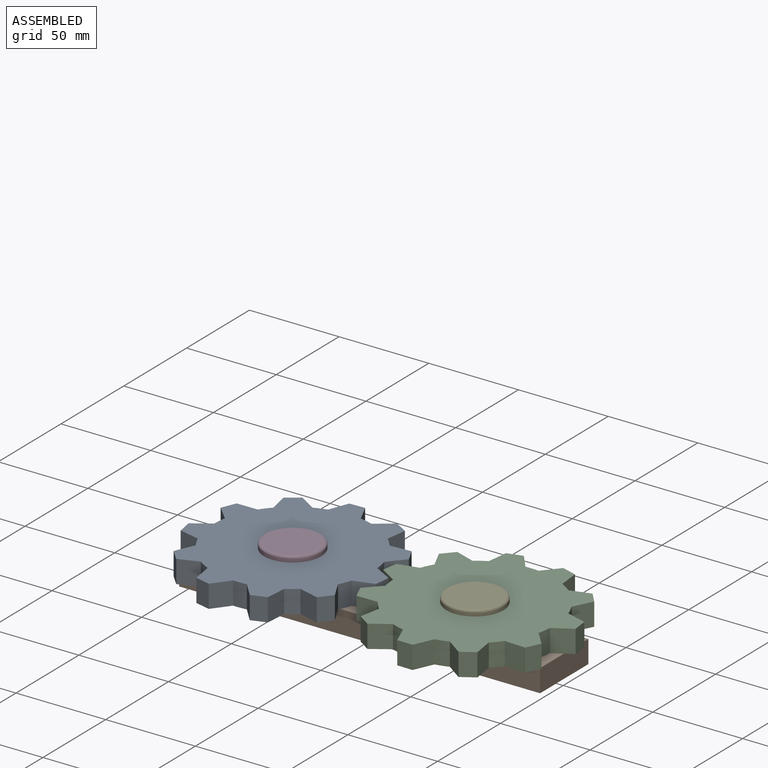
[diagram: assembled view]
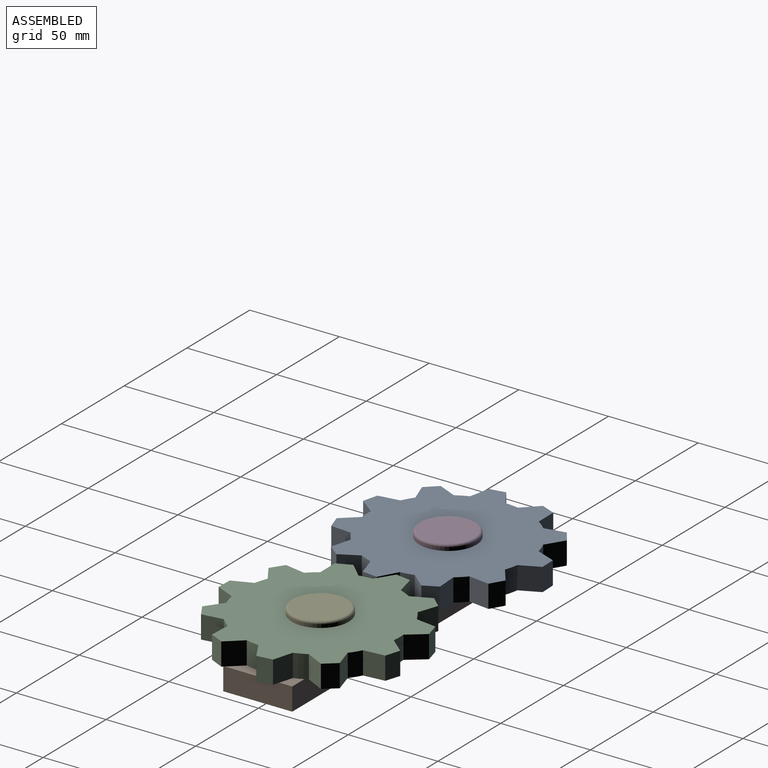
[diagram: assembled view, second angle]
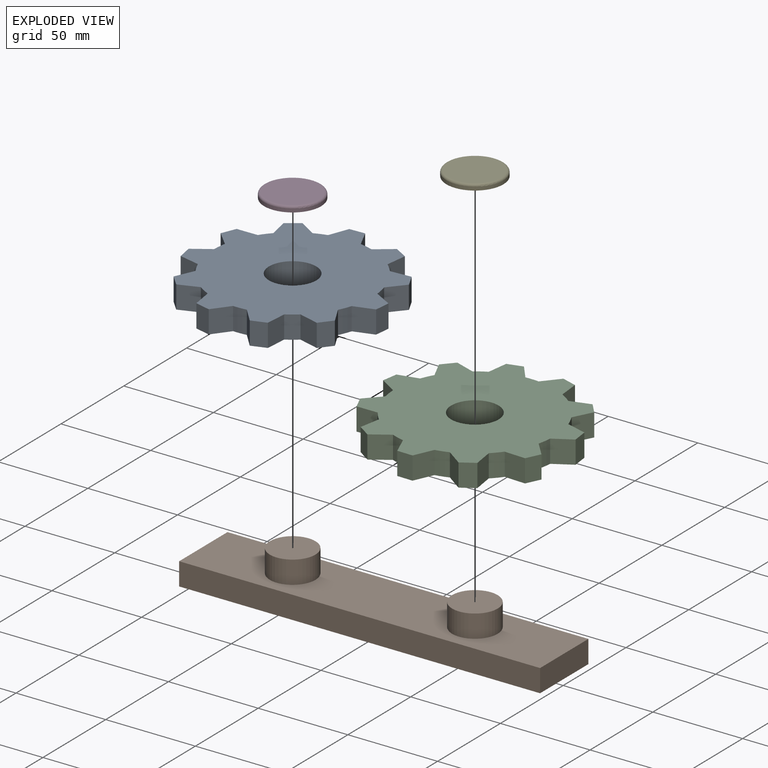
[diagram: exploded view]
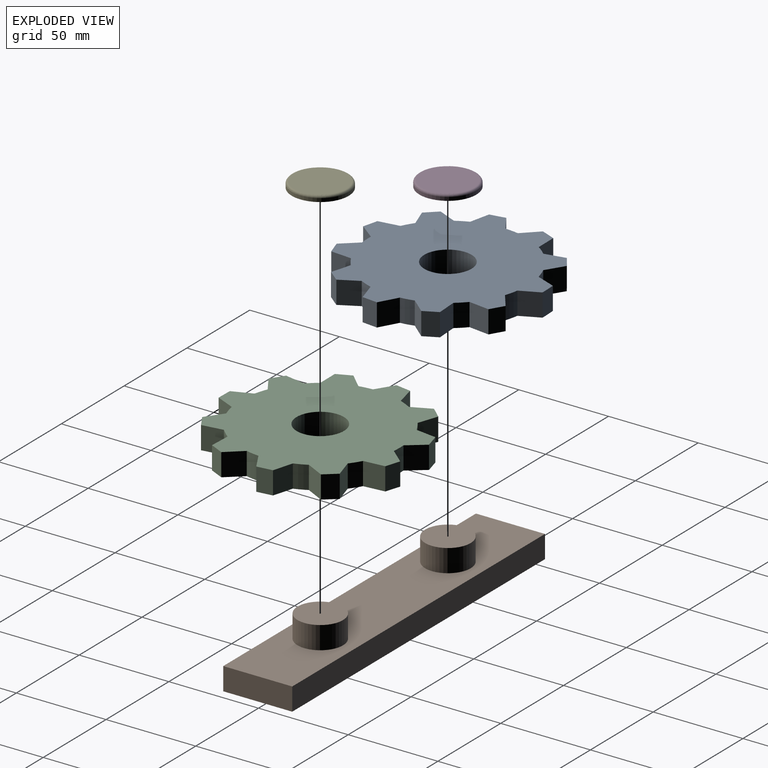
[diagram: exploded view, second angle]
ASSEMBLY  parts=5 mates=4
PART A: 47 faces, bbox 107.6x108.7x12.7 mm
  f0: plane 12.7x9.03mm, normal (-0.63,-0.77,0), area 148.4mm2, adj f1,f43,f45,f46
  f1: cylinder r=44.45mm len=12.7mm, axis (0,0,-1), area 95.1mm2, adj f0,f2,f45,f46
  f2: plane 12.7x9.03mm, normal (-0.63,0.77,0), area 148.4mm2, adj f1,f3,f45,f46
  f3: plane 12.7x8.29mm, normal (-0.96,-0.28,0), area 109.7mm2, adj f2,f4,f45,f46
  f4: plane 12.7x11.61mm, normal (-0.12,-0.99,0), area 148.4mm2, adj f3,f5,f45,f46
  f5: cylinder r=44.45mm len=12.7mm, axis (0,0,-1), area 95.1mm2, adj f4,f6,f45,f46
  f6: plane 12.7x11.12mm, normal (-0.95,0.31,0), area 148.4mm2, adj f5,f7,f45,f46
  f7: plane 12.7x6.53mm, normal (-0.65,-0.76,0), area 109.7mm2, adj f6,f8,f45,f46
  f8: plane 12.7x10.5mm, normal (0.44,-0.9,0), area 148.4mm2, adj f7,f9,f45,f46
  f9: cylinder r=44.45mm len=12.7mm, axis (0,0,-1), area 95.1mm2, adj f8,f10,f45,f46
  f10: plane 12.7x11.29mm, normal (-0.97,-0.26,0), area 148.4mm2, adj f9,f11,f45,f46
  f11: plane 12.7x8.55mm, normal (-0.14,-0.99,0), area 109.7mm2, adj f10,f12,f45,f46
  f12: plane 12.7x9.99mm, normal (0.86,-0.52,0), area 148.4mm2, adj f11,f13,f45,f46
  f13: cylinder r=44.45mm len=12.7mm, axis (0,0,-1), area 95.1mm2, adj f12,f14,f45,f46
  f14: plane 12.7x8.63mm, normal (-0.67,-0.74,0), area 148.4mm2, adj f13,f15,f45,f46
  f15: plane 12.7x7.86mm, normal (0.42,-0.91,0), area 109.7mm2, adj f14,f16,f45,f46
  f16: plane 12.7x11.68mm, normal (1,0.03,0), area 148.4mm2, adj f15,f17,f45,f46
  f17: cylinder r=44.45mm len=12.7mm, axis (0,0,-1), area 95.1mm2, adj f16,f18,f45,f46
  f18: plane 12.7x11.52mm, normal (-0.17,-0.99,0), area 148.4mm2, adj f17,f19,f45,f46
  f19: plane 12.7x7.27mm, normal (0.84,-0.54,0), area 109.7mm2, adj f18,f20,f45,f46
  f20: plane 12.7x9.66mm, normal (0.83,0.56,0), area 148.4mm2, adj f19,f21,f45,f46
  f21: cylinder r=44.45mm len=12.7mm, axis (0,0,-1), area 95.1mm2, adj f20,f22,f45,f46
  f22: plane 12.7x10.75mm, normal (0.39,-0.92,0), area 148.4mm2, adj f21,f23,f45,f46
  f23: plane 12.7x8.64mm, normal (1,0,0), area 109.7mm2, adj f22,f24,f45,f46
  f24: plane 12.7x10.75mm, normal (0.39,0.92,0), area 148.4mm2, adj f23,f25,f45,f46
  f25: cylinder r=44.45mm len=12.7mm, axis (0,0,-1), area 95.1mm2, adj f24,f26,f45,f46
  f26: plane 12.7x9.66mm, normal (0.83,-0.56,0), area 148.4mm2, adj f25,f27,f45,f46
  f27: plane 12.7x7.27mm, normal (0.84,0.54,0), area 109.7mm2, adj f26,f28,f45,f46
  f28: plane 12.7x11.52mm, normal (-0.17,0.99,0), area 148.4mm2, adj f27,f29,f45,f46
  f29: cylinder r=44.45mm len=12.7mm, axis (0,0,-1), area 95.1mm2, adj f28,f30,f45,f46
  f30: plane 12.7x11.68mm, normal (1,-0.03,0), area 148.4mm2, adj f29,f31,f45,f46
  f31: plane 12.7x7.86mm, normal (0.42,0.91,0), area 109.7mm2, adj f30,f32,f45,f46
  f32: plane 12.7x8.63mm, normal (-0.67,0.74,0), area 148.4mm2, adj f31,f33,f45,f46
  f33: cylinder r=44.45mm len=12.7mm, axis (0,0,-1), area 95.1mm2, adj f32,f34,f45,f46
  f34: plane 12.7x9.99mm, normal (0.86,0.52,0), area 148.4mm2, adj f33,f35,f45,f46
  f35: plane 12.7x8.55mm, normal (-0.14,0.99,0), area 109.7mm2, adj f34,f36,f45,f46
  f36: plane 12.7x11.29mm, normal (-0.97,0.26,0), area 148.4mm2, adj f35,f37,f45,f46
  f37: cylinder r=44.45mm len=12.7mm, axis (0,0,-1), area 95.1mm2, adj f36,f38,f45,f46
  f38: plane 12.7x10.5mm, normal (0.44,0.9,0), area 148.4mm2, adj f37,f39,f45,f46
  f39: plane 12.7x6.53mm, normal (-0.65,0.76,0), area 109.7mm2, adj f38,f40,f45,f46
  f40: plane 12.7x11.12mm, normal (-0.95,-0.31,0), area 148.4mm2, adj f39,f41,f45,f46
  f41: cylinder r=44.45mm len=12.7mm, axis (0,0,-1), area 95.1mm2, adj f40,f42,f45,f46
  f42: plane 12.7x11.61mm, normal (-0.12,0.99,0), area 148.4mm2, adj f41,f43,f45,f46
  f43: plane 12.7x8.29mm, normal (-0.96,0.28,0), area 109.7mm2, adj f0,f42,f45,f46
  f44: cylinder r=13.21mm len=26.42mm, axis (0,0,-1), area 1054mm2, adj f45,f46
  f45: plane 108.73x107.63mm, normal (0,0,1), area 7104mm2, adj f0,f1,f2,f3,f4,f5,f6,f7
  f46: plane 108.73x107.63mm, normal (0,0,-1), area 7104mm2, adj f0,f1,f2,f3,f4,f5,f6,f7
PART B: 10 faces, bbox 201.2x38.5x25.4 mm
  f0: plane 38.46x12.7mm, normal (-1,0,0), area 488.4mm2, adj f1,f3,f4,f5
  f1: plane 201.2x12.7mm, normal (0,-1,0), area 2555.2mm2, adj f0,f2,f4,f5
  f2: plane 38.46x12.7mm, normal (1,0,0), area 488.4mm2, adj f1,f3,f4,f5
  f3: plane 201.2x12.7mm, normal (0,1,0), area 2555.2mm2, adj f0,f2,f4,f5
  f4: plane 201.2x38.46mm, normal (0,0,1), area 6724.4mm2, adj f0,f1,f2,f3,f6,f8
  f5: plane 201.2x38.46mm, normal (0,0,-1), area 7737.8mm2, adj f0,f1,f2,f3
  f6: cylinder r=12.7mm len=25.4mm, axis (0,0,-1), area 1013.4mm2, adj f4,f7
  f7: plane 25.4x25.4mm, normal (0,0,1), area 506.7mm2, adj f6
  f8: cylinder r=12.7mm len=25.4mm, axis (0,0,-1), area 1013.4mm2, adj f4,f9
  f9: plane 25.4x25.4mm, normal (0,0,1), area 506.7mm2, adj f8
PART C: 47 faces, bbox 107.9x108.7x12.7 mm
  f0: plane 12.7x8.48mm, normal (-0.69,0.73,0), area 148.4mm2, adj f1,f43,f45,f46
  f1: cylinder r=44.45mm len=12.7mm, axis (0,0,-1), area 95.1mm2, adj f0,f2,f45,f46
  f2: plane 12.7x9.88mm, normal (0.85,0.53,0), area 148.4mm2, adj f1,f3,f45,f46
  f3: plane 12.7x8.53mm, normal (-0.16,0.99,0), area 109.7mm2, adj f2,f4,f45,f46
  f4: plane 12.7x11.35mm, normal (-0.97,0.24,0), area 148.4mm2, adj f3,f5,f45,f46
  f5: cylinder r=44.45mm len=12.7mm, axis (0,0,-1), area 95.1mm2, adj f4,f6,f45,f46
  f6: plane 12.7x10.59mm, normal (0.42,0.91,0), area 148.4mm2, adj f5,f7,f45,f46
  f7: plane 12.7x6.43mm, normal (-0.67,0.74,0), area 109.7mm2, adj f6,f8,f45,f46
  f8: plane 12.7x11.05mm, normal (-0.95,-0.32,0), area 148.4mm2, adj f7,f9,f45,f46
  f9: cylinder r=44.45mm len=12.7mm, axis (0,0,-1), area 95.1mm2, adj f8,f10,f45,f46
  f10: plane 12.7x11.58mm, normal (-0.13,0.99,0), area 148.4mm2, adj f9,f11,f45,f46
  f11: plane 12.7x8.33mm, normal (-0.96,0.26,0), area 109.7mm2, adj f10,f12,f45,f46
  f12: plane 12.7x9.16mm, normal (-0.62,-0.78,0), area 148.4mm2, adj f11,f13,f45,f46
  f13: cylinder r=44.45mm len=12.7mm, axis (0,0,-1), area 95.1mm2, adj f12,f14,f45,f46
  f14: plane 12.7x8.9mm, normal (-0.65,0.76,0), area 148.4mm2, adj f13,f15,f45,f46
  f15: plane 12.7x8.24mm, normal (-0.95,-0.3,0), area 109.7mm2, adj f14,f16,f45,f46
  f16: plane 12.7x11.63mm, normal (-0.1,-1,0), area 148.4mm2, adj f15,f17,f45,f46
  f17: cylinder r=44.45mm len=12.7mm, axis (0,0,-1), area 95.1mm2, adj f16,f18,f45,f46
  f18: plane 12.7x11.18mm, normal (-0.96,0.29,0), area 148.4mm2, adj f17,f19,f45,f46
  f19: plane 12.7x6.63mm, normal (-0.64,-0.77,0), area 109.7mm2, adj f18,f20,f45,f46
  f20: plane 12.7x10.4mm, normal (0.46,-0.89,0), area 148.4mm2, adj f19,f21,f45,f46
  f21: cylinder r=44.45mm len=12.7mm, axis (0,0,-1), area 95.1mm2, adj f20,f22,f45,f46
  f22: plane 12.7x11.24mm, normal (-0.96,-0.27,0), area 148.4mm2, adj f21,f23,f45,f46
  f23: plane 12.7x8.57mm, normal (-0.12,-0.99,0), area 109.7mm2, adj f22,f24,f45,f46
  f24: plane 12.7x10.1mm, normal (0.86,-0.5,0), area 148.4mm2, adj f23,f25,f45,f46
  f25: cylinder r=44.45mm len=12.7mm, axis (0,0,-1), area 95.1mm2, adj f24,f26,f45,f46
  f26: plane 12.7x8.76mm, normal (-0.66,-0.75,0), area 148.4mm2, adj f25,f27,f45,f46
  f27: plane 12.7x7.79mm, normal (0.43,-0.9,0), area 109.7mm2, adj f26,f28,f45,f46
  f28: plane 12.7x11.67mm, normal (1,0.04,0), area 148.4mm2, adj f27,f29,f45,f46
  f29: cylinder r=44.45mm len=12.7mm, axis (0,0,-1), area 95.1mm2, adj f28,f30,f45,f46
  f30: plane 12.7x11.55mm, normal (-0.15,-0.99,0), area 148.4mm2, adj f29,f31,f45,f46
  f31: plane 12.7x7.35mm, normal (0.85,-0.53,0), area 109.7mm2, adj f30,f32,f45,f46
  f32: plane 12.7x9.54mm, normal (0.82,0.58,0), area 148.4mm2, adj f31,f33,f45,f46
  f33: cylinder r=44.45mm len=12.7mm, axis (0,0,-1), area 95.1mm2, adj f32,f34,f45,f46
  f34: plane 12.7x10.67mm, normal (0.41,-0.91,0), area 148.4mm2, adj f33,f35,f45,f46
  f35: plane 12.7x8.63mm, normal (1,0.02,0), area 109.7mm2, adj f34,f36,f45,f46
  f36: plane 12.7x10.83mm, normal (0.37,0.93,0), area 148.4mm2, adj f35,f37,f45,f46
  f37: cylinder r=44.45mm len=12.7mm, axis (0,0,-1), area 95.1mm2, adj f36,f38,f45,f46
  f38: plane 12.7x9.77mm, normal (0.84,-0.55,0), area 148.4mm2, adj f37,f39,f45,f46
  f39: plane 12.7x7.18mm, normal (0.83,0.56,0), area 109.7mm2, adj f38,f40,f45,f46
  f40: plane 12.7x11.48mm, normal (-0.19,0.98,0), area 148.4mm2, adj f39,f41,f45,f46
  f41: cylinder r=44.45mm len=12.7mm, axis (0,0,-1), area 95.1mm2, adj f40,f42,f45,f46
  f42: plane 12.7x11.68mm, normal (1,-0.01,0), area 148.4mm2, adj f41,f43,f45,f46
  f43: plane 12.7x7.92mm, normal (0.4,0.92,0), area 109.7mm2, adj f0,f42,f45,f46
  f44: cylinder r=13.21mm len=26.42mm, axis (0,0,-1), area 1054mm2, adj f45,f46
  f45: plane 108.72x107.88mm, normal (0,0,1), area 7104mm2, adj f0,f1,f2,f3,f4,f5,f6,f7
  f46: plane 108.72x107.88mm, normal (0,0,-1), area 7104mm2, adj f0,f1,f2,f3,f4,f5,f6,f7
PART D: 4 faces, bbox 34.4x34.4x3.2 mm
  f0: cylinder r=15.88mm len=31.75mm, axis (0,0,-1), area 190mm2, adj f2,f3
  f1: plane 29.21x29.21mm, normal (0,0,1), area 670.1mm2, adj f3
  f2: plane 31.75x31.75mm, normal (0,0,-1), area 791.7mm2, adj f0
  f3: torus R=14.61mm, axis (0,0,1), area 193.2mm2, adj f0,f1
PART E: 4 faces, bbox 34.4x34.4x3.2 mm
  f0: cylinder r=15.88mm len=31.75mm, axis (0,0,-1), area 190mm2, adj f2,f3
  f1: plane 29.21x29.21mm, normal (0,0,1), area 670.1mm2, adj f3
  f2: plane 31.75x31.75mm, normal (0,0,-1), area 791.7mm2, adj f0
  f3: torus R=14.61mm, axis (0,0,1), area 193.2mm2, adj f0,f1
PLACE A rot(axis=(0,0,1),26.7deg) t=(-5.4,22.79,-12.7)mm
PLACE B t=(0,0,-12.7)mm
PLACE C rot(axis=(0,0,-1),26.7deg) t=(5.4,22.79,-12.7)mm
PLACE D t=(0,0,-12.7)mm
PLACE E t=(0,0,-12.7)mm
MATE fastened D.f0 <-> B.f6  axis (0,0,-1) through (-50.8,0,12.7)mm
MATE revolute C.f44 <-> B.f8  axis (0,0,-1) through (50.8,0,12.7)mm
MATE revolute A.f44 <-> B.f6  axis (0,0,-1) through (-50.8,0,12.7)mm
MATE fastened E.f0 <-> B.f8  axis (0,0,-1) through (50.8,0,12.7)mm
